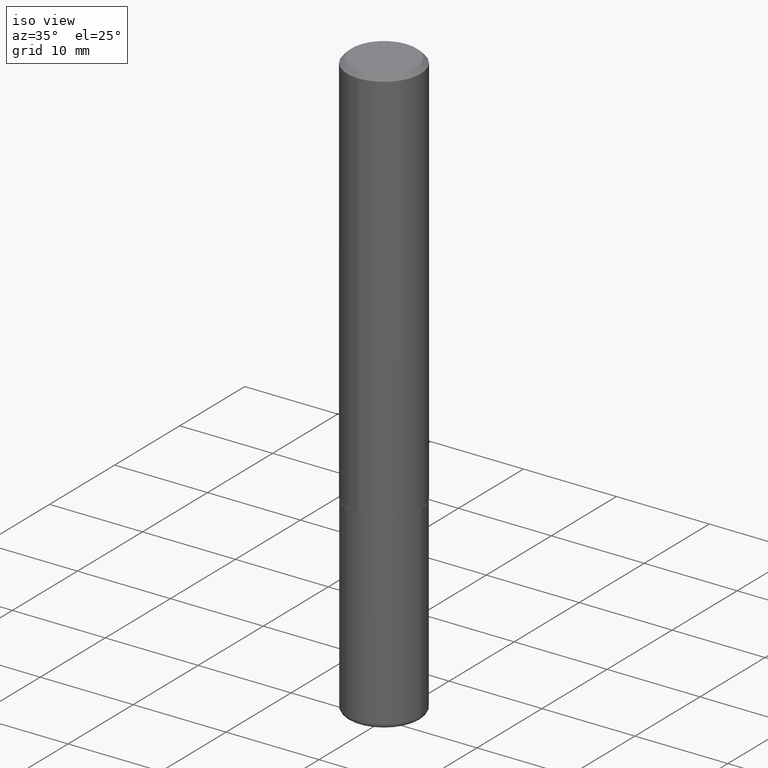
[diagram: clean part render]
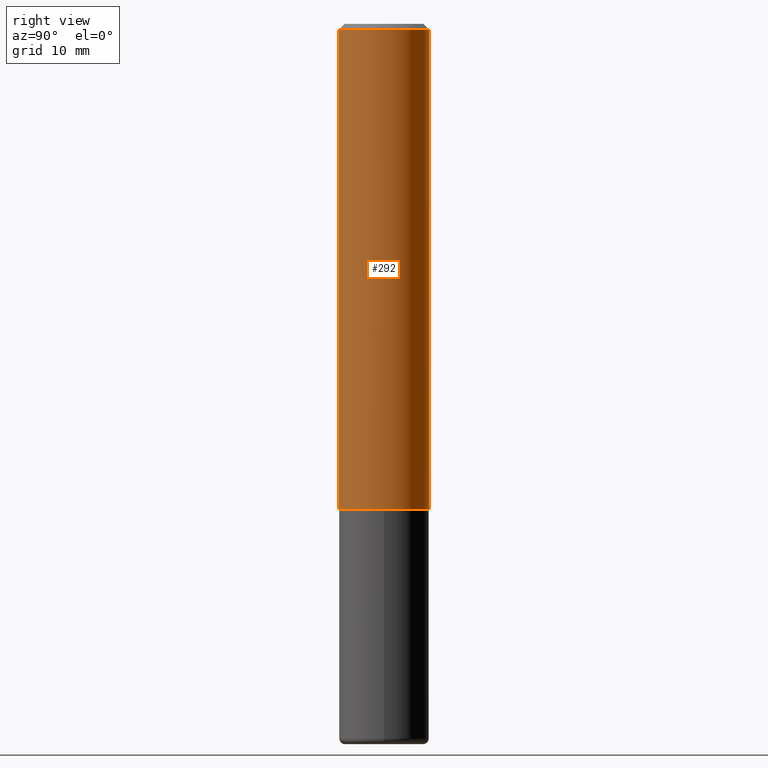
[diagram: tour spotlight — one face highlighted and labeled with its STEP entity id]
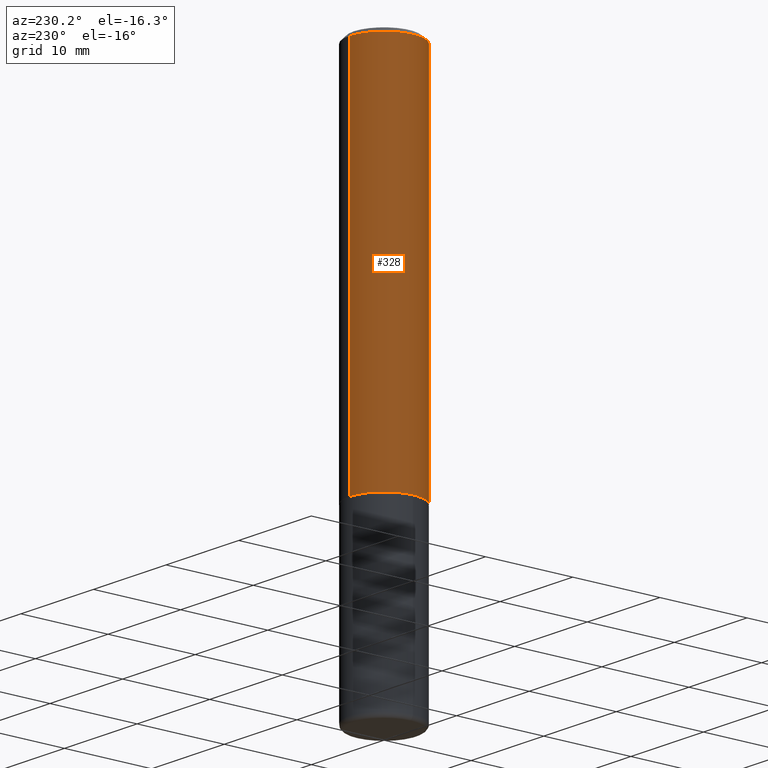
[diagram: tour spotlight — one face highlighted and labeled with its STEP entity id]
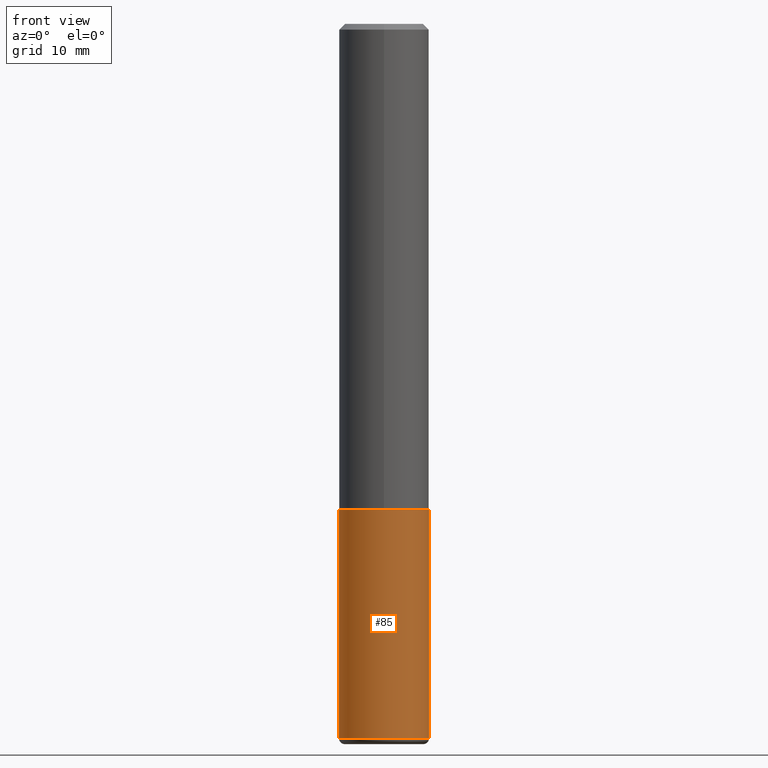
[diagram: tour spotlight — one face highlighted and labeled with its STEP entity id]
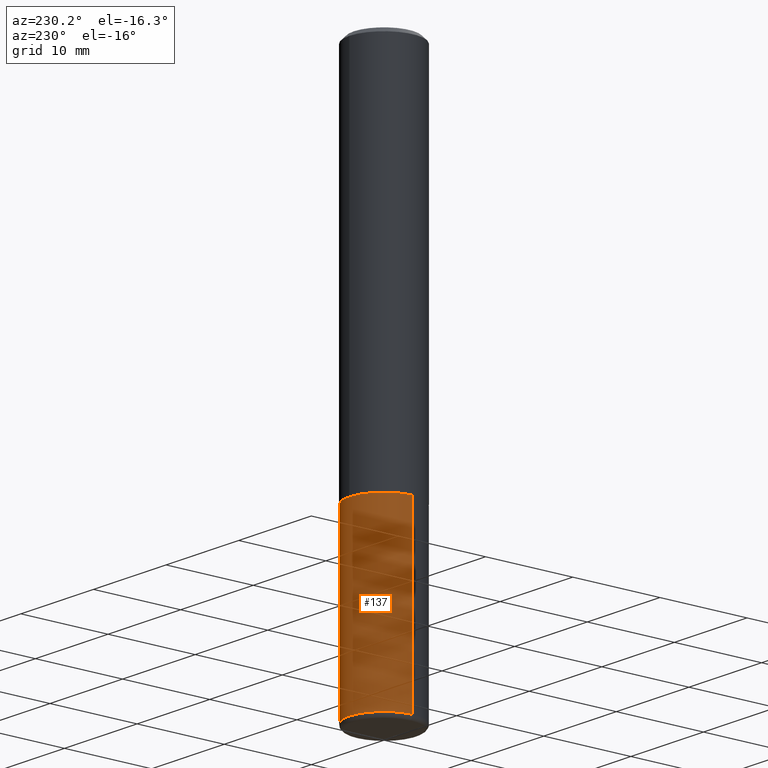
[diagram: tour spotlight — one face highlighted and labeled with its STEP entity id]
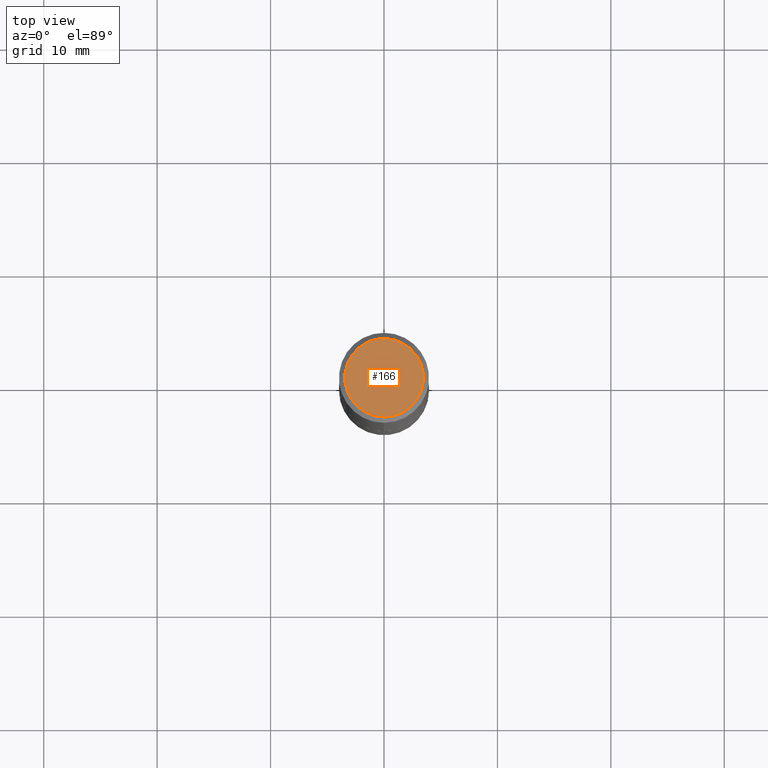
[diagram: tour spotlight — one face highlighted and labeled with its STEP entity id]
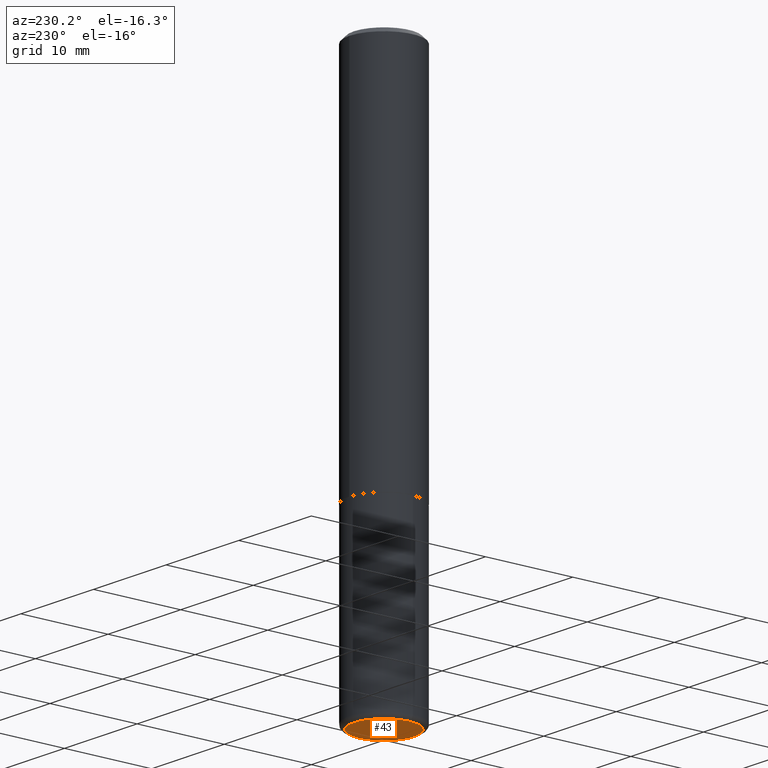
[diagram: tour spotlight — one face highlighted and labeled with its STEP entity id]
A machine part: a face-by-face anatomy tour. The part has 14 B-rep faces; the first image is the clean iso view, then the 6 largest visible faces are spotlighted one at a time (largest first), each with its STEP entity span.

Face 1 — right view, entity #292. In plain terms, the highlighted cylindrical surface (partial cylindrical patch) has radius 3.9688 mm, axis along (-0, 0, 1).
Definition (entity closure, byte-faithful):
#3 = CARTESIAN_POINT ( 'NONE',  ( -1.091087918388479962E-15, -0.1562500000000001388, 5.454617528603499581E-16 ) ) ;
#5 = DIRECTION ( 'NONE',  ( -2.445836194192456800E-29, 3.490955218306236261E-15, 1.000000000000000000 ) ) ;
#16 = VECTOR ( 'NONE', #285, 39.37007874015748143 ) ;
#18 = VERTEX_POINT ( 'NONE', #246 ) ;
#48 = EDGE_LOOP ( 'NONE', ( #351, #332, #299, #308 ) ) ;
#61 = LINE ( 'NONE', #339, #16 ) ;
#81 = VERTEX_POINT ( 'NONE', #413 ) ;
#112 = AXIS2_PLACEMENT_3D ( 'NONE', #149, #145, #126 ) ;
#123 = CARTESIAN_POINT ( 'NONE',  ( 1.110223024625178431E-15, 0.1562499999999943379, -1.686000000000000831 ) ) ;
#126 = DIRECTION ( 'NONE',  ( -6.982962677686265922E-15, -1.000000000000000000, 3.490955218306236655E-15 ) ) ;
#129 = DIRECTION ( 'NONE',  ( -2.445836194192457080E-29, 3.490955218306235866E-15, 1.000000000000000000 ) ) ;
#132 = DIRECTION ( 'NONE',  ( -6.982962677686265922E-15, -1.000000000000000000, 3.496765431890251792E-15 ) ) ;
#144 = VERTEX_POINT ( 'NONE', #261 ) ;
#145 = DIRECTION ( 'NONE',  ( -2.445836194192456800E-29, 3.490955218306236261E-15, 1.000000000000000000 ) ) ;
#149 = CARTESIAN_POINT ( 'NONE',  ( 0.000000000000000000, 0.000000000000000000, 0.000000000000000000 ) ) ;
#165 = CIRCLE ( 'NONE', #368, 0.1562500000000000278 ) ;
#182 = CYLINDRICAL_SURFACE ( 'NONE', #112, 0.1562500000000001388 ) ;
#190 = EDGE_CURVE ( 'NONE', #18, #144, #165, .T. ) ;
#195 = LINE ( 'NONE', #3, #317 ) ;
#209 = FACE_OUTER_BOUND ( 'NONE', #48, .T. ) ;
#224 = VERTEX_POINT ( 'NONE', #123 ) ;
#225 = CIRCLE ( 'NONE', #233, 0.1562500000000002220 ) ;
#233 = AXIS2_PLACEMENT_3D ( 'NONE', #279, #5, #132 ) ;
#246 = CARTESIAN_POINT ( 'NONE',  ( -1.071952812151801412E-15, -0.1562500000000001110, -0.01999999999999948694 ) ) ;
#261 = CARTESIAN_POINT ( 'NONE',  ( 1.091087918388479765E-15, 0.1562499999999999722, -0.02000000000000057981 ) ) ;
#263 = EDGE_CURVE ( 'NONE', #224, #144, #61, .T. ) ;
#279 = CARTESIAN_POINT ( 'NONE',  ( 4.123679823408482543E-29, -5.885750498064314951E-15, -1.686000000000000165 ) ) ;
#281 = DIRECTION ( 'NONE',  ( -6.982962677686266711E-15, -1.000000000000000000, 3.496765431890256131E-15 ) ) ;
#285 = DIRECTION ( 'NONE',  ( -2.445836194192457080E-29, 3.490955218306235866E-15, 1.000000000000000000 ) ) ;
#292 = ADVANCED_FACE ( 'NONE', ( #209 ), #182, .T. ) ;
#299 = ORIENTED_EDGE ( 'NONE', *, *, #190, .F. ) ;
#308 = ORIENTED_EDGE ( 'NONE', *, *, #381, .F. ) ;
#311 = CARTESIAN_POINT ( 'NONE',  ( 4.891672388384922358E-31, -6.981910436612484108E-17, -0.02000000000000003511 ) ) ;
#317 = VECTOR ( 'NONE', #129, 39.37007874015748143 ) ;
#332 = ORIENTED_EDGE ( 'NONE', *, *, #263, .T. ) ;
#339 = CARTESIAN_POINT ( 'NONE',  ( 1.110223024625157329E-15, 0.1562500000000001388, -5.454617528603499581E-16 ) ) ;
#340 = EDGE_CURVE ( 'NONE', #81, #224, #225, .T. ) ;
#351 = ORIENTED_EDGE ( 'NONE', *, *, #340, .T. ) ;
#368 = AXIS2_PLACEMENT_3D ( 'NONE', #311, #377, #281 ) ;
#377 = DIRECTION ( 'NONE',  ( -2.445836194192456800E-29, 3.490955218306236261E-15, 1.000000000000000000 ) ) ;
#381 = EDGE_CURVE ( 'NONE', #81, #18, #195, .T. ) ;
#413 = CARTESIAN_POINT ( 'NONE',  ( -1.091087918388439336E-15, -0.1562500000000060785, -1.685999999999999721 ) ) ;

Face 2 — auxiliary view, entity #328. In plain terms, the highlighted cylindrical surface (partial cylindrical patch) has radius 3.9688 mm, axis along (-0, 0, 1).
Definition (entity closure, byte-faithful):
#3 = CARTESIAN_POINT ( 'NONE',  ( -1.091087918388479962E-15, -0.1562500000000001388, 5.454617528603499581E-16 ) ) ;
#8 = AXIS2_PLACEMENT_3D ( 'NONE', #120, #58, #180 ) ;
#16 = VECTOR ( 'NONE', #285, 39.37007874015748143 ) ;
#18 = VERTEX_POINT ( 'NONE', #246 ) ;
#32 = DIRECTION ( 'NONE',  ( -6.982962677686265922E-15, -1.000000000000000000, 3.496765431890251792E-15 ) ) ;
#57 = AXIS2_PLACEMENT_3D ( 'NONE', #227, #105, #382 ) ;
#58 = DIRECTION ( 'NONE',  ( -2.445836194192456800E-29, 3.490955218306236261E-15, 1.000000000000000000 ) ) ;
#61 = LINE ( 'NONE', #339, #16 ) ;
#81 = VERTEX_POINT ( 'NONE', #413 ) ;
#93 = DIRECTION ( 'NONE',  ( -2.445836194192456800E-29, 3.490955218306236261E-15, 1.000000000000000000 ) ) ;
#105 = DIRECTION ( 'NONE',  ( -2.445836194192456800E-29, 3.490955218306236261E-15, 1.000000000000000000 ) ) ;
#114 = ORIENTED_EDGE ( 'NONE', *, *, #355, .F. ) ;
#120 = CARTESIAN_POINT ( 'NONE',  ( 0.000000000000000000, 0.000000000000000000, 0.000000000000000000 ) ) ;
#123 = CARTESIAN_POINT ( 'NONE',  ( 1.110223024625178431E-15, 0.1562499999999943379, -1.686000000000000831 ) ) ;
#125 = CIRCLE ( 'NONE', #57, 0.1562500000000000278 ) ;
#129 = DIRECTION ( 'NONE',  ( -2.445836194192457080E-29, 3.490955218306235866E-15, 1.000000000000000000 ) ) ;
#144 = VERTEX_POINT ( 'NONE', #261 ) ;
#180 = DIRECTION ( 'NONE',  ( -6.982962677686265922E-15, -1.000000000000000000, 3.490955218306236655E-15 ) ) ;
#195 = LINE ( 'NONE', #3, #317 ) ;
#199 = AXIS2_PLACEMENT_3D ( 'NONE', #412, #93, #32 ) ;
#213 = FACE_OUTER_BOUND ( 'NONE', #305, .T. ) ;
#224 = VERTEX_POINT ( 'NONE', #123 ) ;
#227 = CARTESIAN_POINT ( 'NONE',  ( 4.891672388384922358E-31, -6.981910436612484108E-17, -0.02000000000000003511 ) ) ;
#246 = CARTESIAN_POINT ( 'NONE',  ( -1.071952812151801412E-15, -0.1562500000000001110, -0.01999999999999948694 ) ) ;
#256 = CIRCLE ( 'NONE', #199, 0.1562500000000002220 ) ;
#261 = CARTESIAN_POINT ( 'NONE',  ( 1.091087918388479765E-15, 0.1562499999999999722, -0.02000000000000057981 ) ) ;
#263 = EDGE_CURVE ( 'NONE', #224, #144, #61, .T. ) ;
#276 = EDGE_CURVE ( 'NONE', #224, #81, #256, .T. ) ;
#285 = DIRECTION ( 'NONE',  ( -2.445836194192457080E-29, 3.490955218306235866E-15, 1.000000000000000000 ) ) ;
#305 = EDGE_LOOP ( 'NONE', ( #362, #365, #396, #114 ) ) ;
#317 = VECTOR ( 'NONE', #129, 39.37007874015748143 ) ;
#328 = ADVANCED_FACE ( 'NONE', ( #213 ), #348, .T. ) ;
#339 = CARTESIAN_POINT ( 'NONE',  ( 1.110223024625157329E-15, 0.1562500000000001388, -5.454617528603499581E-16 ) ) ;
#348 = CYLINDRICAL_SURFACE ( 'NONE', #8, 0.1562500000000001388 ) ;
#355 = EDGE_CURVE ( 'NONE', #144, #18, #125, .T. ) ;
#362 = ORIENTED_EDGE ( 'NONE', *, *, #263, .F. ) ;
#365 = ORIENTED_EDGE ( 'NONE', *, *, #276, .T. ) ;
#381 = EDGE_CURVE ( 'NONE', #81, #18, #195, .T. ) ;
#382 = DIRECTION ( 'NONE',  ( -6.982962677686266711E-15, -1.000000000000000000, 3.496765431890256131E-15 ) ) ;
#396 = ORIENTED_EDGE ( 'NONE', *, *, #381, .T. ) ;
#412 = CARTESIAN_POINT ( 'NONE',  ( 4.123679823408482543E-29, -5.885750498064314951E-15, -1.686000000000000165 ) ) ;
#413 = CARTESIAN_POINT ( 'NONE',  ( -1.091087918388439336E-15, -0.1562500000000060785, -1.685999999999999721 ) ) ;

Face 3 — front view, entity #85. In plain terms, the highlighted cylindrical surface (partial cylindrical patch) has radius 3.9688 mm, axis along (-0, 0, 1).
Definition (entity closure, byte-faithful):
#27 = CARTESIAN_POINT ( 'NONE',  ( 0.1562500000000000000, -6.981216937016868084E-15, -1.687000000000000277 ) ) ;
#28 = CYLINDRICAL_SURFACE ( 'NONE', #40, 0.1562500000000000000 ) ;
#31 = VECTOR ( 'NONE', #211, 39.37007874015748143 ) ;
#40 = AXIS2_PLACEMENT_3D ( 'NONE', #119, #127, #251 ) ;
#59 = VERTEX_POINT ( 'NONE', #282 ) ;
#63 = CARTESIAN_POINT ( 'NONE',  ( 0.1562500000000000000, -1.091087918388479174E-15, 7.619026212181150377E-30 ) ) ;
#71 = EDGE_CURVE ( 'NONE', #174, #59, #302, .T. ) ;
#85 = ADVANCED_FACE ( 'NONE', ( #344 ), #28, .T. ) ;
#91 = DIRECTION ( 'NONE',  ( 1.000000000000000000, -6.982962677686269077E-15, 0.000000000000000000 ) ) ;
#97 = LINE ( 'NONE', #63, #320 ) ;
#108 = AXIS2_PLACEMENT_3D ( 'NONE', #212, #121, #152 ) ;
#119 = CARTESIAN_POINT ( 'NONE',  ( 0.000000000000000000, 0.000000000000000000, 0.000000000000000000 ) ) ;
#121 = DIRECTION ( 'NONE',  ( -2.445468806185136597E-29, 3.491481338843145583E-15, 1.000000000000000000 ) ) ;
#127 = DIRECTION ( 'NONE',  ( -2.445468806185136597E-29, 3.491481338843145583E-15, 1.000000000000000000 ) ) ;
#139 = ORIENTED_EDGE ( 'NONE', *, *, #184, .F. ) ;
#152 = DIRECTION ( 'NONE',  ( 1.000000000000000000, -6.982962677686262766E-15, 0.000000000000000000 ) ) ;
#172 = ORIENTED_EDGE ( 'NONE', *, *, #234, .F. ) ;
#174 = VERTEX_POINT ( 'NONE', #364 ) ;
#178 = EDGE_LOOP ( 'NONE', ( #172, #400, #303, #139 ) ) ;
#184 = EDGE_CURVE ( 'NONE', #235, #331, #363, .T. ) ;
#194 = EDGE_CURVE ( 'NONE', #59, #331, #97, .T. ) ;
#211 = DIRECTION ( 'NONE',  ( -2.445468806185136877E-29, 3.491481338843145188E-15, 1.000000000000000000 ) ) ;
#212 = CARTESIAN_POINT ( 'NONE',  ( 6.064762639339139522E-29, -8.658873720331001644E-15, -2.480000000000000426 ) ) ;
#216 = DIRECTION ( 'NONE',  ( -2.445468806185136877E-29, 3.491481338843145188E-15, 1.000000000000000000 ) ) ;
#234 = EDGE_CURVE ( 'NONE', #174, #235, #315, .T. ) ;
#235 = VERTEX_POINT ( 'NONE', #415 ) ;
#244 = CARTESIAN_POINT ( 'NONE',  ( -0.1562500000000000000, 1.110223024625156540E-15, -7.685836078523291160E-30 ) ) ;
#251 = DIRECTION ( 'NONE',  ( 1.000000000000000000, -6.982962677686266711E-15, 4.876176775795936353E-29 ) ) ;
#277 = DIRECTION ( 'NONE',  ( -2.445468806185136597E-29, 3.491481338843145583E-15, 1.000000000000000000 ) ) ;
#282 = CARTESIAN_POINT ( 'NONE',  ( 0.1562499999999999445, -9.749961638719480029E-15, -2.480000000000000426 ) ) ;
#302 = CIRCLE ( 'NONE', #108, 0.1562500000000000000 ) ;
#303 = ORIENTED_EDGE ( 'NONE', *, *, #194, .T. ) ;
#315 = LINE ( 'NONE', #244, #31 ) ;
#320 = VECTOR ( 'NONE', #216, 39.37007874015748143 ) ;
#331 = VERTEX_POINT ( 'NONE', #27 ) ;
#344 = FACE_OUTER_BOUND ( 'NONE', #178, .T. ) ;
#363 = CIRCLE ( 'NONE', #389, 0.1562500000000000000 ) ;
#364 = CARTESIAN_POINT ( 'NONE',  ( -0.1562499999999999445, -7.548650695705845104E-15, -2.480000000000000426 ) ) ;
#372 = CARTESIAN_POINT ( 'NONE',  ( 4.125505876034326327E-29, -5.890129018628388122E-15, -1.687000000000000277 ) ) ;
#389 = AXIS2_PLACEMENT_3D ( 'NONE', #372, #277, #91 ) ;
#400 = ORIENTED_EDGE ( 'NONE', *, *, #71, .T. ) ;
#415 = CARTESIAN_POINT ( 'NONE',  ( -0.1562500000000000000, -6.164278344854539131E-15, -1.687000000000000277 ) ) ;

Face 4 — auxiliary view, entity #137. In plain terms, the highlighted cylindrical surface (partial cylindrical patch) has radius 3.9688 mm, axis along (-0, 0, 1).
Definition (entity closure, byte-faithful):
#25 = DIRECTION ( 'NONE',  ( 1.000000000000000000, -6.982962677686269077E-15, 0.000000000000000000 ) ) ;
#27 = CARTESIAN_POINT ( 'NONE',  ( 0.1562500000000000000, -6.981216937016868084E-15, -1.687000000000000277 ) ) ;
#31 = VECTOR ( 'NONE', #211, 39.37007874015748143 ) ;
#41 = DIRECTION ( 'NONE',  ( 1.000000000000000000, -6.982962677686266711E-15, 4.876176775795936353E-29 ) ) ;
#55 = CARTESIAN_POINT ( 'NONE',  ( 4.125505876034326327E-29, -5.890129018628388122E-15, -1.687000000000000277 ) ) ;
#59 = VERTEX_POINT ( 'NONE', #282 ) ;
#63 = CARTESIAN_POINT ( 'NONE',  ( 0.1562500000000000000, -1.091087918388479174E-15, 7.619026212181150377E-30 ) ) ;
#97 = LINE ( 'NONE', #63, #320 ) ;
#110 = EDGE_CURVE ( 'NONE', #59, #174, #131, .T. ) ;
#117 = AXIS2_PLACEMENT_3D ( 'NONE', #157, #287, #124 ) ;
#124 = DIRECTION ( 'NONE',  ( 1.000000000000000000, -6.982962677686262766E-15, 0.000000000000000000 ) ) ;
#130 = DIRECTION ( 'NONE',  ( -2.445468806185136597E-29, 3.491481338843145583E-15, 1.000000000000000000 ) ) ;
#131 = CIRCLE ( 'NONE', #117, 0.1562500000000000000 ) ;
#137 = ADVANCED_FACE ( 'NONE', ( #253 ), #393, .T. ) ;
#143 = ORIENTED_EDGE ( 'NONE', *, *, #234, .T. ) ;
#157 = CARTESIAN_POINT ( 'NONE',  ( 6.064762639339139522E-29, -8.658873720331001644E-15, -2.480000000000000426 ) ) ;
#160 = CARTESIAN_POINT ( 'NONE',  ( 0.000000000000000000, 0.000000000000000000, 0.000000000000000000 ) ) ;
#174 = VERTEX_POINT ( 'NONE', #364 ) ;
#194 = EDGE_CURVE ( 'NONE', #59, #331, #97, .T. ) ;
#203 = ORIENTED_EDGE ( 'NONE', *, *, #110, .T. ) ;
#207 = AXIS2_PLACEMENT_3D ( 'NONE', #160, #130, #41 ) ;
#211 = DIRECTION ( 'NONE',  ( -2.445468806185136877E-29, 3.491481338843145188E-15, 1.000000000000000000 ) ) ;
#216 = DIRECTION ( 'NONE',  ( -2.445468806185136877E-29, 3.491481338843145188E-15, 1.000000000000000000 ) ) ;
#234 = EDGE_CURVE ( 'NONE', #174, #235, #315, .T. ) ;
#235 = VERTEX_POINT ( 'NONE', #415 ) ;
#244 = CARTESIAN_POINT ( 'NONE',  ( -0.1562500000000000000, 1.110223024625156540E-15, -7.685836078523291160E-30 ) ) ;
#247 = AXIS2_PLACEMENT_3D ( 'NONE', #55, #309, #25 ) ;
#253 = FACE_OUTER_BOUND ( 'NONE', #370, .T. ) ;
#282 = CARTESIAN_POINT ( 'NONE',  ( 0.1562499999999999445, -9.749961638719480029E-15, -2.480000000000000426 ) ) ;
#287 = DIRECTION ( 'NONE',  ( -2.445468806185136597E-29, 3.491481338843145583E-15, 1.000000000000000000 ) ) ;
#288 = EDGE_CURVE ( 'NONE', #331, #235, #335, .T. ) ;
#309 = DIRECTION ( 'NONE',  ( -2.445468806185136597E-29, 3.491481338843145583E-15, 1.000000000000000000 ) ) ;
#315 = LINE ( 'NONE', #244, #31 ) ;
#320 = VECTOR ( 'NONE', #216, 39.37007874015748143 ) ;
#331 = VERTEX_POINT ( 'NONE', #27 ) ;
#335 = CIRCLE ( 'NONE', #247, 0.1562500000000000000 ) ;
#346 = ORIENTED_EDGE ( 'NONE', *, *, #194, .F. ) ;
#364 = CARTESIAN_POINT ( 'NONE',  ( -0.1562499999999999445, -7.548650695705845104E-15, -2.480000000000000426 ) ) ;
#366 = ORIENTED_EDGE ( 'NONE', *, *, #288, .F. ) ;
#370 = EDGE_LOOP ( 'NONE', ( #203, #143, #366, #346 ) ) ;
#393 = CYLINDRICAL_SURFACE ( 'NONE', #207, 0.1562500000000000000 ) ;
#415 = CARTESIAN_POINT ( 'NONE',  ( -0.1562500000000000000, -6.164278344854539131E-15, -1.687000000000000277 ) ) ;

Face 5 — top view, entity #166. In plain terms, the highlighted planar face has unit normal (0, -0, -1).
Definition (entity closure, byte-faithful):
#13 = EDGE_CURVE ( 'NONE', #15, #310, #206, .T. ) ;
#15 = VERTEX_POINT ( 'NONE', #154 ) ;
#37 = DIRECTION ( 'NONE',  ( -6.982962677686267499E-15, -1.000000000000000000, 3.490955218306237444E-15 ) ) ;
#78 = PLANE ( 'NONE',  #191 ) ;
#92 = DIRECTION ( 'NONE',  ( -2.445836194192456800E-29, 3.490955218306236261E-15, 1.000000000000000000 ) ) ;
#111 = DIRECTION ( 'NONE',  ( 6.982962677686265922E-15, 1.000000000000000000, -3.490955218306235866E-15 ) ) ;
#150 = DIRECTION ( 'NONE',  ( -6.982962677686267499E-15, -1.000000000000000000, 3.490955218306237444E-15 ) ) ;
#154 = CARTESIAN_POINT ( 'NONE',  ( -1.003347832174086870E-15, -0.1362500000000001765, 3.517841023581594269E-16 ) ) ;
#159 = CARTESIAN_POINT ( 'NONE',  ( 3.029377150996461054E-45, -4.323846379655227478E-31, -1.238585461360658504E-16 ) ) ;
#166 = ADVANCED_FACE ( 'NONE', ( #231 ), #78, .F. ) ;
#167 = CARTESIAN_POINT ( 'NONE',  ( 9.514286648347551409E-16, 0.1362500000000001765, -5.375719215622581901E-16 ) ) ;
#176 = ORIENTED_EDGE ( 'NONE', *, *, #13, .T. ) ;
#181 = CARTESIAN_POINT ( 'NONE',  ( 3.029377150996461054E-45, -4.323846379655227478E-31, -1.238585461360658504E-16 ) ) ;
#191 = AXIS2_PLACEMENT_3D ( 'NONE', #167, #200, #111 ) ;
#200 = DIRECTION ( 'NONE',  ( 2.445836194192456800E-29, -3.490955218306235866E-15, -1.000000000000000000 ) ) ;
#206 = CIRCLE ( 'NONE', #258, 0.1362500000000001765 ) ;
#228 = CIRCLE ( 'NONE', #357, 0.1362500000000001765 ) ;
#231 = FACE_OUTER_BOUND ( 'NONE', #373, .T. ) ;
#241 = ORIENTED_EDGE ( 'NONE', *, *, #418, .T. ) ;
#258 = AXIS2_PLACEMENT_3D ( 'NONE', #181, #92, #150 ) ;
#289 = DIRECTION ( 'NONE',  ( -2.445836194192456800E-29, 3.490955218306236261E-15, 1.000000000000000000 ) ) ;
#310 = VERTEX_POINT ( 'NONE', #337 ) ;
#337 = CARTESIAN_POINT ( 'NONE',  ( 1.021258291611617453E-15, 0.1362500000000001765, -5.995011946302911277E-16 ) ) ;
#357 = AXIS2_PLACEMENT_3D ( 'NONE', #159, #289, #37 ) ;
#373 = EDGE_LOOP ( 'NONE', ( #241, #176 ) ) ;
#418 = EDGE_CURVE ( 'NONE', #310, #15, #228, .T. ) ;

Face 6 — auxiliary view, entity #43. In plain terms, the highlighted planar face has unit normal (0, -0, -1).
Definition (entity closure, byte-faithful):
#2 = AXIS2_PLACEMENT_3D ( 'NONE', #21, #313, #345 ) ;
#21 = CARTESIAN_POINT ( 'NONE',  ( 6.113672015462842613E-29, -8.728703347107864943E-15, -2.500000000000000000 ) ) ;
#43 = ADVANCED_FACE ( 'NONE', ( #146 ), #95, .T. ) ;
#45 = CIRCLE ( 'NONE', #259, 0.1362500000000000100 ) ;
#52 = ORIENTED_EDGE ( 'NONE', *, *, #222, .F. ) ;
#69 = EDGE_LOOP ( 'NONE', ( #52, #336 ) ) ;
#82 = CARTESIAN_POINT ( 'NONE',  ( 0.1362500000000000100, -9.680132011942619886E-15, -2.500000000000000000 ) ) ;
#89 = CARTESIAN_POINT ( 'NONE',  ( 6.113672015462842613E-29, -8.728703347107864943E-15, -2.500000000000000000 ) ) ;
#95 = PLANE ( 'NONE',  #350 ) ;
#141 = VERTEX_POINT ( 'NONE', #301 ) ;
#146 = FACE_OUTER_BOUND ( 'NONE', #69, .T. ) ;
#177 = DIRECTION ( 'NONE',  ( 1.000000000000000000, -6.982962677686273021E-15, 0.000000000000000000 ) ) ;
#183 = VERTEX_POINT ( 'NONE', #82 ) ;
#185 = DIRECTION ( 'NONE',  ( -2.445468806185136597E-29, 3.491481338843145583E-15, 1.000000000000000000 ) ) ;
#214 = CARTESIAN_POINT ( 'NONE',  ( 6.113672015462842613E-29, -8.728703347107864943E-15, -2.500000000000000000 ) ) ;
#222 = EDGE_CURVE ( 'NONE', #183, #141, #376, .T. ) ;
#259 = AXIS2_PLACEMENT_3D ( 'NONE', #89, #185, #177 ) ;
#269 = EDGE_CURVE ( 'NONE', #141, #183, #45, .T. ) ;
#280 = DIRECTION ( 'NONE',  ( -1.000000000000000000, 6.982962677686265922E-15, -4.876176775795935793E-29 ) ) ;
#301 = CARTESIAN_POINT ( 'NONE',  ( -0.1362500000000000100, -7.654619782670286835E-15, -2.500000000000000000 ) ) ;
#312 = DIRECTION ( 'NONE',  ( 2.438088387897960049E-29, -3.491481338843145188E-15, -1.000000000000000000 ) ) ;
#313 = DIRECTION ( 'NONE',  ( -2.445468806185136597E-29, 3.491481338843145583E-15, 1.000000000000000000 ) ) ;
#336 = ORIENTED_EDGE ( 'NONE', *, *, #269, .F. ) ;
#345 = DIRECTION ( 'NONE',  ( 1.000000000000000000, -6.982962677686273021E-15, 0.000000000000000000 ) ) ;
#350 = AXIS2_PLACEMENT_3D ( 'NONE', #214, #312, #280 ) ;
#376 = CIRCLE ( 'NONE', #2, 0.1362500000000000100 ) ;